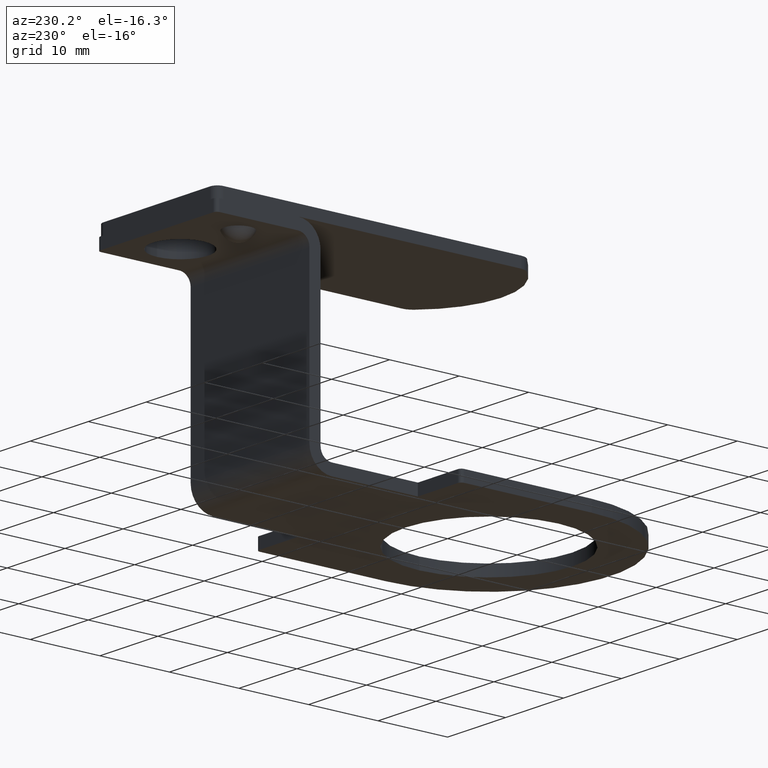
[diagram: clean part render]
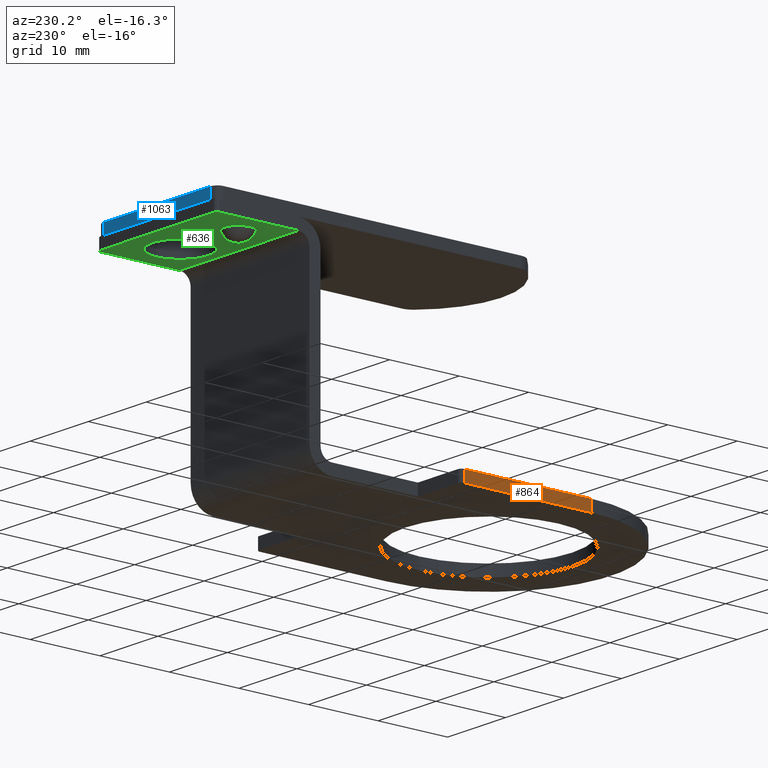
[diagram: same view with three faces highlighted in distinct colors, each labeled with its STEP entity id]
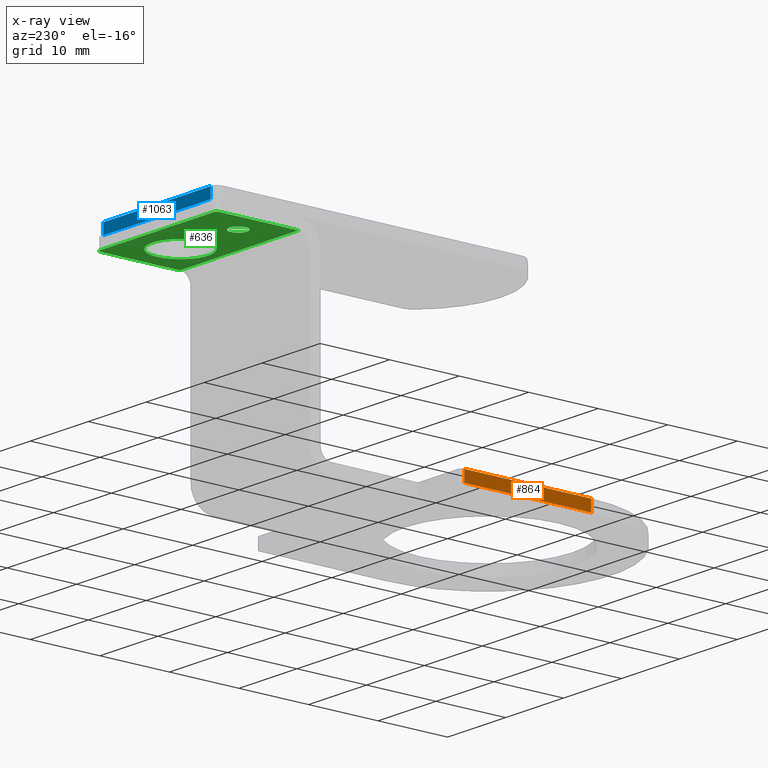
[diagram: x-ray of the same camera — body ghosted, the three highlighted faces saturated]
A machine part, auxiliary view with three faces highlighted in distinct colors.
The next image is the same camera in x-ray (body ghosted, the three faces saturated) — at least one of them is partly hidden behind the body in this view.
Their STEP definitions:

[orange] entity #864 — the highlighted planar face has unit normal (-1, 0, 0).
#282=CARTESIAN_POINT('',(-14.873034844879953,-0.008765849280008,1.600000000000000));
#283=VERTEX_POINT('',#282);
#291=CARTESIAN_POINT('',(-14.873034844879951,-18.258765849280007,1.600000000000000));
#292=VERTEX_POINT('',#291);
#293=CARTESIAN_POINT('',(-14.873034844879951,-18.258765849280007,1.600000000000000));
#294=DIRECTION('',(0.0,1.0,0.0));
#295=VECTOR('',#294,18.250000000000000);
#296=LINE('',#293,#295);
#297=EDGE_CURVE('',#292,#283,#296,.T.);
#563=CARTESIAN_POINT('',(-14.873034844879953,-0.008765849280008,0.0));
#564=VERTEX_POINT('',#563);
#572=CARTESIAN_POINT('',(-14.873034844879953,-0.008765849280008,0.0));
#573=DIRECTION('',(0.0,0.0,1.0));
#574=VECTOR('',#573,1.600000000000000);
#575=LINE('',#572,#574);
#576=EDGE_CURVE('',#564,#283,#575,.T.);
#829=CARTESIAN_POINT('',(-14.873034844879951,-18.258765849280007,0.0));
#830=VERTEX_POINT('',#829);
#831=CARTESIAN_POINT('',(-14.873034844879951,-18.258765849280007,0.0));
#832=DIRECTION('',(0.0,0.0,1.0));
#833=VECTOR('',#832,1.600000000000000);
#834=LINE('',#831,#833);
#835=EDGE_CURVE('',#830,#292,#834,.T.);
#848=CARTESIAN_POINT('',(-14.873034844879951,-18.258765849280007,0.0));
#849=DIRECTION('',(-1.0,0.0,0.0));
#850=DIRECTION('',(0.0,0.0,1.0));
#851=AXIS2_PLACEMENT_3D('',#848,#849,#850);
#852=PLANE('',#851);
#853=ORIENTED_EDGE('',*,*,#576,.F.);
#854=CARTESIAN_POINT('',(-14.873034844879953,-0.008765849280008,0.0));
#855=DIRECTION('',(0.0,-1.0,0.0));
#856=VECTOR('',#855,18.250000000000000);
#857=LINE('',#854,#856);
#858=EDGE_CURVE('',#564,#830,#857,.T.);
#859=ORIENTED_EDGE('',*,*,#858,.T.);
#860=ORIENTED_EDGE('',*,*,#835,.T.);
#861=ORIENTED_EDGE('',*,*,#297,.T.);
#862=EDGE_LOOP('',(#853,#859,#860,#861));
#863=FACE_OUTER_BOUND('',#862,.T.);
#864=ADVANCED_FACE('',(#863),#852,.T.);

[blue] entity #1063 — the highlighted planar face has unit normal (0, 1, 0).
#996=CARTESIAN_POINT('',(16.590537004942465,16.195594190789066,1.500000000000000));
#997=VERTEX_POINT('',#996);
#1015=CARTESIAN_POINT('',(16.590537004942465,16.195594190789066,0.0));
#1016=VERTEX_POINT('',#1015);
#1024=CARTESIAN_POINT('',(16.590537004942465,16.195594190789066,0.0));
#1025=DIRECTION('',(0.0,0.0,1.0));
#1026=VECTOR('',#1025,1.500000000000000);
#1027=LINE('',#1024,#1026);
#1028=EDGE_CURVE('',#1016,#997,#1027,.T.);
#1033=CARTESIAN_POINT('',(-2.909462995057537,16.195594190789066,0.0));
#1034=DIRECTION('',(0.0,1.0,0.0));
#1035=DIRECTION('',(0.0,0.0,1.0));
#1036=AXIS2_PLACEMENT_3D('',#1033,#1034,#1035);
#1037=PLANE('',#1036);
#1038=ORIENTED_EDGE('',*,*,#1028,.F.);
#1039=CARTESIAN_POINT('',(-1.909462995057537,16.195594190789066,0.0));
#1040=VERTEX_POINT('',#1039);
#1041=CARTESIAN_POINT('',(-1.909462995057537,16.195594190789066,0.0));
#1042=DIRECTION('',(1.0,0.0,0.0));
#1043=VECTOR('',#1042,18.500000000000004);
#1044=LINE('',#1041,#1043);
#1045=EDGE_CURVE('',#1040,#1016,#1044,.T.);
#1046=ORIENTED_EDGE('',*,*,#1045,.F.);
#1047=CARTESIAN_POINT('',(-1.909462995057537,16.195594190789066,1.500000000000000));
#1048=VERTEX_POINT('',#1047);
#1049=CARTESIAN_POINT('',(-1.909462995057537,16.195594190789066,1.500000000000000));
#1050=DIRECTION('',(0.0,0.0,-1.0));
#1051=VECTOR('',#1050,1.500000000000000);
#1052=LINE('',#1049,#1051);
#1053=EDGE_CURVE('',#1048,#1040,#1052,.T.);
#1054=ORIENTED_EDGE('',*,*,#1053,.F.);
#1055=CARTESIAN_POINT('',(-1.909462995057537,16.195594190789066,1.500000000000000));
#1056=DIRECTION('',(1.0,0.0,0.0));
#1057=VECTOR('',#1056,18.500000000000004);
#1058=LINE('',#1055,#1057);
#1059=EDGE_CURVE('',#1048,#997,#1058,.T.);
#1060=ORIENTED_EDGE('',*,*,#1059,.T.);
#1061=EDGE_LOOP('',(#1038,#1046,#1054,#1060));
#1062=FACE_OUTER_BOUND('',#1061,.T.);
#1063=ADVANCED_FACE('',(#1062),#1037,.T.);

[green] entity #636 — the highlighted planar face has unit normal (0, 0, -1).
#112=CARTESIAN_POINT('',(10.526965155120047,22.991234150720000,27.400000000000002));
#113=VERTEX_POINT('',#112);
#114=CARTESIAN_POINT('',(6.526965155120048,22.991234150720000,27.400000000000002));
#115=DIRECTION('',(0.0,0.0,1.0));
#116=DIRECTION('',(-1.0,0.0,0.0));
#117=AXIS2_PLACEMENT_3D('',#114,#115,#116);
#118=CIRCLE('',#117,4.0);
#119=EDGE_CURVE('',#113,#113,#118,.T.);
#140=CARTESIAN_POINT('',(-2.223034844879960,22.991234150720004,27.400000000000002));
#141=VERTEX_POINT('',#140);
#142=CARTESIAN_POINT('',(-3.473034844879960,22.991234150720004,27.400000000000002));
#143=DIRECTION('',(0.0,0.0,1.0));
#144=DIRECTION('',(-1.0,0.0,0.0));
#145=AXIS2_PLACEMENT_3D('',#142,#143,#144);
#146=CIRCLE('',#145,1.250000000000000);
#147=EDGE_CURVE('',#141,#141,#146,.T.);
#337=CARTESIAN_POINT('',(-6.973034844879960,29.491234150720000,27.400000000000002));
#338=VERTEX_POINT('',#337);
#345=CARTESIAN_POINT('',(-7.473034844879960,28.991234150720004,27.400000000000002));
#346=VERTEX_POINT('',#345);
#347=CARTESIAN_POINT('',(-6.973034844879960,28.991234150720004,27.400000000000002));
#348=DIRECTION('',(0.0,0.0,1.0));
#349=DIRECTION('',(-0.707106781186549,0.707106781186546,0.0));
#350=AXIS2_PLACEMENT_3D('',#347,#348,#349);
#351=CIRCLE('',#350,0.500000000000000);
#352=EDGE_CURVE('',#338,#346,#351,.T.);
#377=CARTESIAN_POINT('',(12.526965155120049,29.491234150720000,27.400000000000002));
#378=VERTEX_POINT('',#377);
#385=CARTESIAN_POINT('',(-6.973034844879960,29.491234150720000,27.400000000000002));
#386=DIRECTION('',(1.0,0.0,0.0));
#387=VECTOR('',#386,19.500000000000007);
#388=LINE('',#385,#387);
#389=EDGE_CURVE('',#338,#378,#388,.T.);
#446=CARTESIAN_POINT('',(13.026965155120047,28.991234150720004,27.400000000000002));
#447=VERTEX_POINT('',#446);
#448=CARTESIAN_POINT('',(12.526965155120049,28.991234150720004,27.400000000000002));
#449=DIRECTION('',(0.0,0.0,1.000000000000000));
#450=DIRECTION('',(0.707106781186548,0.707106781186548,0.0));
#451=AXIS2_PLACEMENT_3D('',#448,#449,#450);
#452=CIRCLE('',#451,0.500000000000000);
#453=EDGE_CURVE('',#447,#378,#452,.T.);
#531=CARTESIAN_POINT('',(13.026965155120047,17.691234150720000,27.400000000000002));
#532=VERTEX_POINT('',#531);
#540=CARTESIAN_POINT('',(13.026965155120047,28.991234150720004,27.400000000000002));
#541=DIRECTION('',(0.0,-1.0,0.0));
#542=VECTOR('',#541,11.300000000000004);
#543=LINE('',#540,#542);
#544=EDGE_CURVE('',#447,#532,#543,.T.);
#605=CARTESIAN_POINT('',(-7.473034844879960,29.491234150720000,27.400000000000002));
#606=DIRECTION('',(0.0,0.0,-1.0));
#607=DIRECTION('',(-1.0,0.0,0.0));
#608=AXIS2_PLACEMENT_3D('',#605,#606,#607);
#609=PLANE('',#608);
#610=ORIENTED_EDGE('',*,*,#352,.F.);
#611=ORIENTED_EDGE('',*,*,#389,.T.);
#612=ORIENTED_EDGE('',*,*,#453,.F.);
#613=ORIENTED_EDGE('',*,*,#544,.T.);
#614=CARTESIAN_POINT('',(-7.473034844879960,17.691234150719989,27.400000000000002));
#615=VERTEX_POINT('',#614);
#616=CARTESIAN_POINT('',(-7.473034844879960,17.691234150719989,27.400000000000002));
#617=DIRECTION('',(1.0,0.0,0.0));
#618=VECTOR('',#617,20.500000000000007);
#619=LINE('',#616,#618);
#620=EDGE_CURVE('',#615,#532,#619,.T.);
#621=ORIENTED_EDGE('',*,*,#620,.F.);
#622=CARTESIAN_POINT('',(-7.473034844879960,17.691234150719989,27.400000000000002));
#623=DIRECTION('',(0.0,1.0,0.0));
#624=VECTOR('',#623,11.300000000000015);
#625=LINE('',#622,#624);
#626=EDGE_CURVE('',#615,#346,#625,.T.);
#627=ORIENTED_EDGE('',*,*,#626,.T.);
#628=EDGE_LOOP('',(#610,#611,#612,#613,#621,#627));
#629=FACE_OUTER_BOUND('',#628,.T.);
#630=ORIENTED_EDGE('',*,*,#119,.T.);
#631=EDGE_LOOP('',(#630));
#632=FACE_BOUND('',#631,.T.);
#633=ORIENTED_EDGE('',*,*,#147,.T.);
#634=EDGE_LOOP('',(#633));
#635=FACE_BOUND('',#634,.T.);
#636=ADVANCED_FACE('',(#629,#632,#635),#609,.T.);